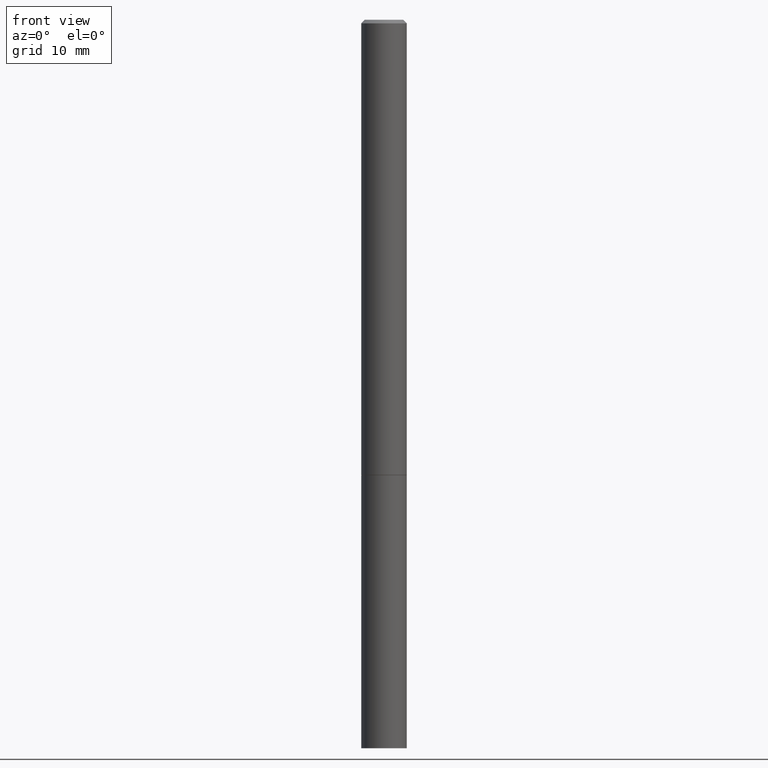
[diagram: clean part render]
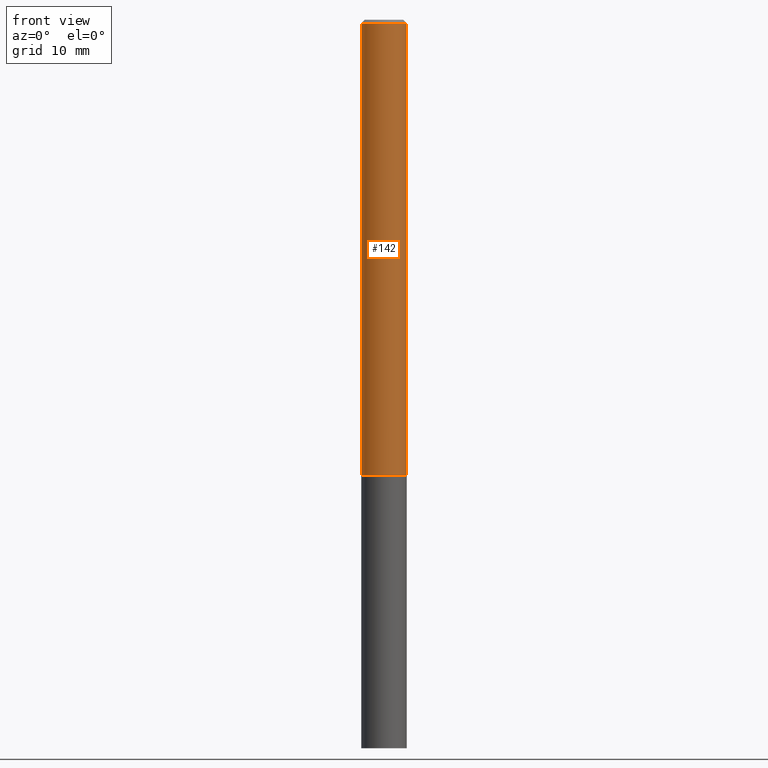
[diagram: same view with one face highlighted and labeled with its STEP entity id]
A machine part, front view. The second image highlights one B-rep face of the part: STEP entity #142.
In plain terms, the highlighted cylindrical surface (edge-blend (fillet) strip) has radius 3.175 mm, axis along (-0, 0, 1).
Its self-contained STEP definition (entity closure, byte-faithful):
#8 = AXIS2_PLACEMENT_3D ( 'NONE', #304, #202, #96 ) ;
#16 = AXIS2_PLACEMENT_3D ( 'NONE', #234, #323, #60 ) ;
#34 = CARTESIAN_POINT ( 'NONE',  ( 0.1249999999999998612, -8.728703347107823527E-16, 6.095220969744912735E-30 ) ) ;
#56 = CARTESIAN_POINT ( 'NONE',  ( -0.1249999999999997086, 8.030407079339183643E-16, -0.02000000000000000736 ) ) ;
#60 = DIRECTION ( 'NONE',  ( 1.000000000000000000, -6.982962677686266711E-15, 4.876176775795935793E-29 ) ) ;
#64 = DIRECTION ( 'NONE',  ( -2.445468806185136877E-29, 3.491481338843145188E-15, 1.000000000000000000 ) ) ;
#71 = VECTOR ( 'NONE', #64, 39.37007874015748143 ) ;
#88 = EDGE_CURVE ( 'NONE', #220, #326, #248, .T. ) ;
#94 = FACE_OUTER_BOUND ( 'NONE', #198, .T. ) ;
#96 = DIRECTION ( 'NONE',  ( 1.000000000000000000, -6.982962677686266711E-15, 0.000000000000000000 ) ) ;
#102 = VERTEX_POINT ( 'NONE', #335 ) ;
#115 = ORIENTED_EDGE ( 'NONE', *, *, #178, .T. ) ;
#118 = CYLINDRICAL_SURFACE ( 'NONE', #16, 0.1249999999999998612 ) ;
#142 = ADVANCED_FACE ( 'NONE', ( #94 ), #118, .T. ) ;
#146 = CARTESIAN_POINT ( 'NONE',  ( 6.111226546656659252E-29, -8.725211865769023513E-15, -2.499000000000000998 ) ) ;
#147 = CARTESIAN_POINT ( 'NONE',  ( -0.1249999999999998612, 8.881784197001242463E-16, -6.148668862818625221E-30 ) ) ;
#154 = AXIS2_PLACEMENT_3D ( 'NONE', #146, #236, #213 ) ;
#157 = VERTEX_POINT ( 'NONE', #295 ) ;
#158 = EDGE_CURVE ( 'NONE', #102, #326, #170, .T. ) ;
#159 = ORIENTED_EDGE ( 'NONE', *, *, #330, .F. ) ;
#170 = LINE ( 'NONE', #34, #294 ) ;
#178 = EDGE_CURVE ( 'NONE', #157, #102, #259, .T. ) ;
#198 = EDGE_LOOP ( 'NONE', ( #159, #115, #267, #314 ) ) ;
#202 = DIRECTION ( 'NONE',  ( -2.445468806185136597E-29, 3.491481338843145583E-15, 1.000000000000000000 ) ) ;
#210 = LINE ( 'NONE', #147, #71 ) ;
#213 = DIRECTION ( 'NONE',  ( 1.000000000000000000, -6.982962677686270655E-15, 0.000000000000000000 ) ) ;
#220 = VERTEX_POINT ( 'NONE', #56 ) ;
#234 = CARTESIAN_POINT ( 'NONE',  ( 0.000000000000000000, 0.000000000000000000, 0.000000000000000000 ) ) ;
#236 = DIRECTION ( 'NONE',  ( -2.445468806185136597E-29, 3.491481338843145583E-15, 1.000000000000000000 ) ) ;
#248 = CIRCLE ( 'NONE', #8, 0.1249999999999997086 ) ;
#259 = CIRCLE ( 'NONE', #154, 0.1250000000000000000 ) ;
#267 = ORIENTED_EDGE ( 'NONE', *, *, #158, .T. ) ;
#290 = DIRECTION ( 'NONE',  ( -2.445468806185136877E-29, 3.491481338843145188E-15, 1.000000000000000000 ) ) ;
#294 = VECTOR ( 'NONE', #290, 39.37007874015748143 ) ;
#295 = CARTESIAN_POINT ( 'NONE',  ( -0.1250000000000000000, -3.509342326572812651E-15, -2.499000000000000998 ) ) ;
#304 = CARTESIAN_POINT ( 'NONE',  ( 4.890937612370274910E-31, -6.982962677686295307E-17, -0.02000000000000000736 ) ) ;
#314 = ORIENTED_EDGE ( 'NONE', *, *, #88, .F. ) ;
#323 = DIRECTION ( 'NONE',  ( -2.445468806185136597E-29, 3.491481338843145583E-15, 1.000000000000000000 ) ) ;
#326 = VERTEX_POINT ( 'NONE', #328 ) ;
#328 = CARTESIAN_POINT ( 'NONE',  ( 0.1249999999999997086, -9.273918764983023769E-16, -0.02000000000000000736 ) ) ;
#330 = EDGE_CURVE ( 'NONE', #157, #220, #210, .T. ) ;
#335 = CARTESIAN_POINT ( 'NONE',  ( 0.1250000000000000000, -9.598082200479808430E-15, -2.499000000000000998 ) ) ;